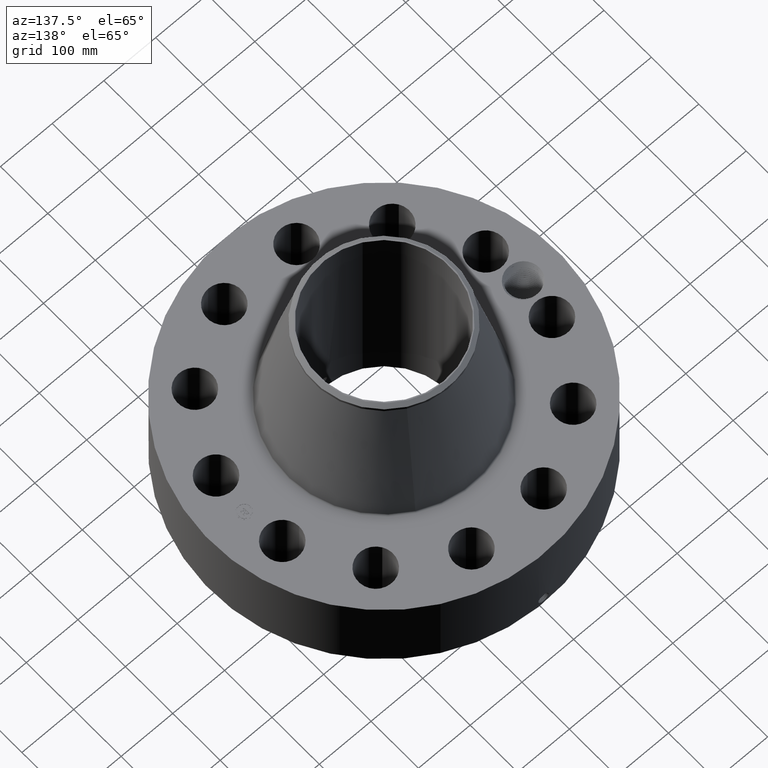
[diagram: clean part render]
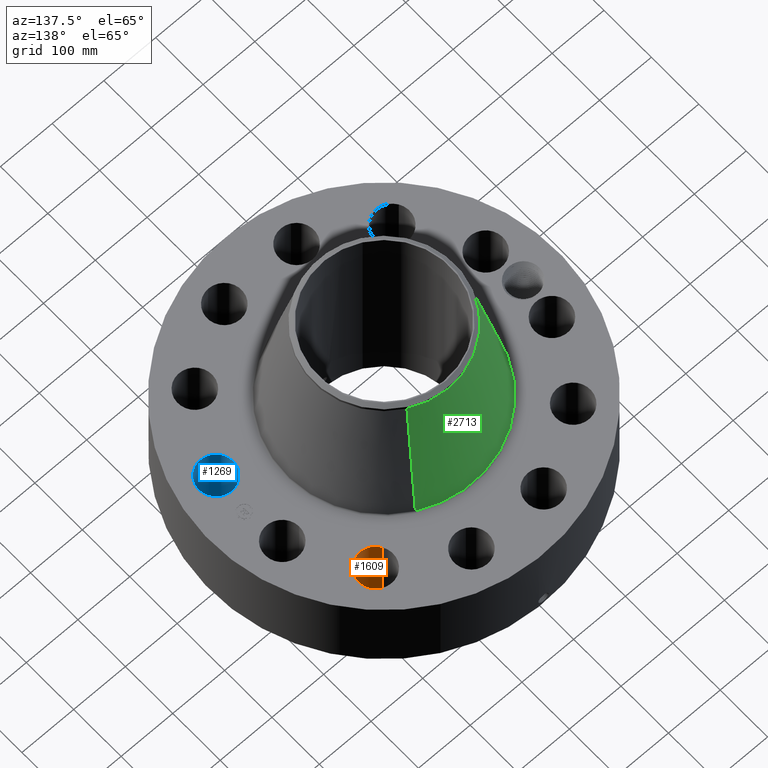
[diagram: same view with three faces highlighted in distinct colors, each labeled with its STEP entity id]
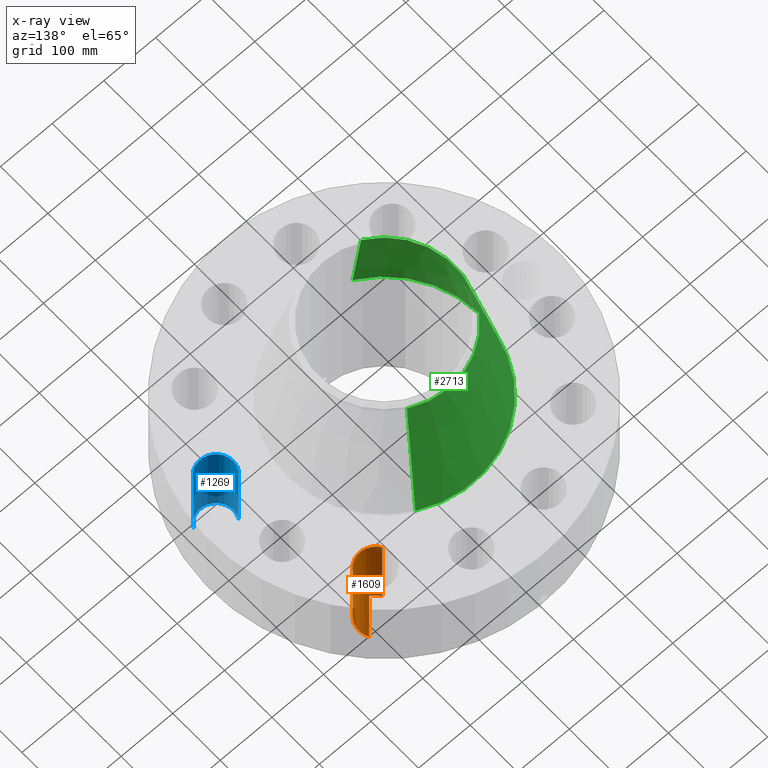
[diagram: x-ray of the same camera — body ghosted, the three highlighted faces saturated]
A machine part, auxiliary view with three faces highlighted in distinct colors.
The next image is the same camera in x-ray (body ghosted, the three faces saturated) — at least one of them is partly hidden behind the body in this view.
Their STEP definitions:

[orange] entity #1609 — the highlighted cylindrical surface (edge-blend (fillet) strip) has radius 33.274 mm, axis along (0, 0, -1).
#446=AXIS2_PLACEMENT_3D('Circle Axis2P3D',#444,#445,$) ;
#841=AXIS2_PLACEMENT_3D('Circle Axis2P3D',#839,#840,$) ;
#1584=AXIS2_PLACEMENT_3D('Cylinder Axis2P3D',#1581,#1582,#1583) ;
#439=CARTESIAN_POINT('Vertex',(6.39428792079,6.83142175973,0.250000000001)) ;
#441=CARTESIAN_POINT('Vertex',(8.63173117949,8.19459734055,0.250000000001)) ;
#444=CARTESIAN_POINT('Axis2P3D Location',(7.51300955014,7.51300955014,0.250000000001)) ;
#839=CARTESIAN_POINT('Axis2P3D Location',(7.51300955014,7.51300955014,6.75000000003)) ;
#843=CARTESIAN_POINT('Vertex',(8.63173117949,8.19459734055,6.75000000003)) ;
#845=CARTESIAN_POINT('Vertex',(6.39428792079,6.83142175973,6.75000000003)) ;
#1581=CARTESIAN_POINT('Axis2P3D Location',(7.51300955014,7.51300955014,6.74606299215)) ;
#1586=CARTESIAN_POINT('Line Origine',(6.39428792079,6.83142175973,3.50000000001)) ;
#1591=CARTESIAN_POINT('Line Origine',(8.63173117949,8.19459734055,3.50000000001)) ;
#445=DIRECTION('Axis2P3D Direction',(0.,0.,-0.0393700787402)) ;
#840=DIRECTION('Axis2P3D Direction',(0.,0.,-0.0393700787402)) ;
#1582=DIRECTION('Axis2P3D Direction',(0.,0.,-0.0393700787402)) ;
#1583=DIRECTION('Axis2P3D XDirection',(0.0336214951417,0.0204840954021,0.)) ;
#1587=DIRECTION('Vector Direction',(0.,0.,-0.0393700787402)) ;
#1592=DIRECTION('Vector Direction',(0.,0.,-0.0393700787402)) ;
#1588=VECTOR('Line Direction',#1587,0.0393700787402) ;
#1593=VECTOR('Line Direction',#1592,0.0393700787402) ;
#1604=ORIENTED_EDGE('',*,*,#1595,.F.) ;
#1605=ORIENTED_EDGE('',*,*,#448,.T.) ;
#1606=ORIENTED_EDGE('',*,*,#1590,.T.) ;
#1607=ORIENTED_EDGE('',*,*,#847,.F.) ;
#1609=ADVANCED_FACE('PartBody',(#1608),#1585,.F.) ;
#447=CIRCLE('generated circle',#446,1.31000000001) ;
#842=CIRCLE('generated circle',#841,1.31000000001) ;
#1585=CYLINDRICAL_SURFACE('generated cylinder',#1584,1.31000000001) ;
#448=EDGE_CURVE('',#442,#440,#447,.T.) ;
#847=EDGE_CURVE('',#844,#846,#842,.T.) ;
#1590=EDGE_CURVE('',#440,#846,#1589,.F.) ;
#1595=EDGE_CURVE('',#442,#844,#1594,.F.) ;
#1603=EDGE_LOOP('',(#1604,#1605,#1606,#1607)) ;
#1608=FACE_OUTER_BOUND('',#1603,.T.) ;
#1589=LINE('Line',#1586,#1588) ;
#1594=LINE('Line',#1591,#1593) ;
#440=VERTEX_POINT('',#439) ;
#442=VERTEX_POINT('',#441) ;
#844=VERTEX_POINT('',#843) ;
#846=VERTEX_POINT('',#845) ;

[blue] entity #1269 — the highlighted cylindrical surface (edge-blend (fillet) strip) has radius 33.274 mm, axis along (0, -0, -1).
#239=AXIS2_PLACEMENT_3D('Circle Axis2P3D',#237,#238,$) ;
#652=AXIS2_PLACEMENT_3D('Circle Axis2P3D',#650,#651,$) ;
#1251=AXIS2_PLACEMENT_3D('Cylinder Axis2P3D',#1248,#1249,#1250) ;
#237=CARTESIAN_POINT('Axis2P3D Location',(10.2629619044,-2.74995235423,0.250000000001)) ;
#241=CARTESIAN_POINT('Vertex',(11.4125950604,-3.3779998098,0.250000000001)) ;
#243=CARTESIAN_POINT('Vertex',(9.11332874828,-2.12190489865,0.250000000001)) ;
#645=CARTESIAN_POINT('Vertex',(9.11332874828,-2.12190489865,6.75000000003)) ;
#647=CARTESIAN_POINT('Vertex',(11.4125950604,-3.3779998098,6.75000000003)) ;
#650=CARTESIAN_POINT('Axis2P3D Location',(10.2629619044,-2.74995235423,6.75000000003)) ;
#1248=CARTESIAN_POINT('Axis2P3D Location',(10.2629619044,-2.74995235423,6.74606299215)) ;
#1253=CARTESIAN_POINT('Line Origine',(11.4125950604,-3.3779998098,3.50000000001)) ;
#1258=CARTESIAN_POINT('Line Origine',(9.11332874828,-2.12190489865,3.50000000001)) ;
#238=DIRECTION('Axis2P3D Direction',(0.,0.,-0.0393700787402)) ;
#651=DIRECTION('Axis2P3D Direction',(0.,0.,-0.0393700787402)) ;
#1249=DIRECTION('Axis2P3D Direction',(0.,-0.,-0.0393700787402)) ;
#1250=DIRECTION('Axis2P3D XDirection',(-0.0345504945626,0.0188750212049,0.)) ;
#1254=DIRECTION('Vector Direction',(0.,0.,-0.0393700787402)) ;
#1259=DIRECTION('Vector Direction',(0.,0.,-0.0393700787402)) ;
#1255=VECTOR('Line Direction',#1254,0.0393700787402) ;
#1260=VECTOR('Line Direction',#1259,0.0393700787402) ;
#1264=ORIENTED_EDGE('',*,*,#1257,.F.) ;
#1265=ORIENTED_EDGE('',*,*,#245,.T.) ;
#1266=ORIENTED_EDGE('',*,*,#1262,.T.) ;
#1267=ORIENTED_EDGE('',*,*,#654,.F.) ;
#1269=ADVANCED_FACE('PartBody',(#1268),#1252,.F.) ;
#240=CIRCLE('generated circle',#239,1.31000000001) ;
#653=CIRCLE('generated circle',#652,1.31000000001) ;
#1252=CYLINDRICAL_SURFACE('generated cylinder',#1251,1.31000000001) ;
#245=EDGE_CURVE('',#242,#244,#240,.T.) ;
#654=EDGE_CURVE('',#648,#646,#653,.T.) ;
#1257=EDGE_CURVE('',#242,#648,#1256,.F.) ;
#1262=EDGE_CURVE('',#244,#646,#1261,.F.) ;
#1263=EDGE_LOOP('',(#1264,#1265,#1266,#1267)) ;
#1268=FACE_OUTER_BOUND('',#1263,.T.) ;
#1256=LINE('Line',#1253,#1255) ;
#1261=LINE('Line',#1258,#1260) ;
#242=VERTEX_POINT('',#241) ;
#244=VERTEX_POINT('',#243) ;
#646=VERTEX_POINT('',#645) ;
#648=VERTEX_POINT('',#647) ;

[green] entity #2713 — the highlighted conical surface has half-angle 11.835 deg.
#2023=AXIS2_PLACEMENT_3D('Circle Axis2P3D',#2021,#2022,$) ;
#2674=AXIS2_PLACEMENT_3D('Cone Axis2P3D',#2671,#2672,#2673) ;
#2704=AXIS2_PLACEMENT_3D('Circle Axis2P3D',#2702,#2703,$) ;
#1999=CARTESIAN_POINT('Vertex',(3.52618016416,6.45462949504,6.8453882158)) ;
#2006=CARTESIAN_POINT('Vertex',(-3.52618016416,-6.45462949504,6.8453882158)) ;
#2021=CARTESIAN_POINT('Axis2P3D Location',(0.,0.,6.8453882158)) ;
#2671=CARTESIAN_POINT('Axis2P3D Location',(0.,0.,16.2941246249)) ;
#2676=CARTESIAN_POINT('Line Origine',(3.05154621708,5.58581788261,11.5697564203)) ;
#2680=CARTESIAN_POINT('Vertex',(2.57691227001,4.71700627018,16.2941246249)) ;
#2687=CARTESIAN_POINT('Vertex',(-2.57691227001,-4.71700627018,16.2941246249)) ;
#2690=CARTESIAN_POINT('Line Origine',(-3.05154621708,-5.58581788261,11.5697564203)) ;
#2702=CARTESIAN_POINT('Axis2P3D Location',(0.,0.,16.2941246249)) ;
#2022=DIRECTION('Axis2P3D Direction',(0.,0.,-0.0393700787402)) ;
#2672=DIRECTION('Axis2P3D Direction',(0.,0.,-0.0393700787402)) ;
#2673=DIRECTION('Axis2P3D XDirection',(-0.0188750212049,-0.0345504945626,0.)) ;
#2677=DIRECTION('Vector Direction',(0.00387123291039,0.00708624431035,-0.0385331259741)) ;
#2691=DIRECTION('Vector Direction',(-0.00387123291039,-0.00708624431035,-0.0385331259741)) ;
#2703=DIRECTION('Axis2P3D Direction',(0.,0.,-0.0393700787402)) ;
#2678=VECTOR('Line Direction',#2677,0.0393700787402) ;
#2692=VECTOR('Line Direction',#2691,0.0393700787402) ;
#2708=ORIENTED_EDGE('',*,*,#2025,.F.) ;
#2709=ORIENTED_EDGE('',*,*,#2694,.T.) ;
#2710=ORIENTED_EDGE('',*,*,#2706,.T.) ;
#2711=ORIENTED_EDGE('',*,*,#2682,.F.) ;
#2713=ADVANCED_FACE('PartBody',(#2712),#2675,.T.) ;
#2024=CIRCLE('generated circle',#2023,7.35501111273) ;
#2705=CIRCLE('generated circle',#2704,5.37500000002) ;
#2675=CONICAL_SURFACE('Cone',#2674,5.37500000002,0.206564041109) ;
#2025=EDGE_CURVE('',#2007,#2000,#2024,.T.) ;
#2682=EDGE_CURVE('',#2000,#2681,#2679,.F.) ;
#2694=EDGE_CURVE('',#2007,#2688,#2693,.F.) ;
#2706=EDGE_CURVE('',#2688,#2681,#2705,.T.) ;
#2707=EDGE_LOOP('',(#2708,#2709,#2710,#2711)) ;
#2712=FACE_OUTER_BOUND('',#2707,.T.) ;
#2679=LINE('Line',#2676,#2678) ;
#2693=LINE('Line',#2690,#2692) ;
#2000=VERTEX_POINT('',#1999) ;
#2007=VERTEX_POINT('',#2006) ;
#2681=VERTEX_POINT('',#2680) ;
#2688=VERTEX_POINT('',#2687) ;